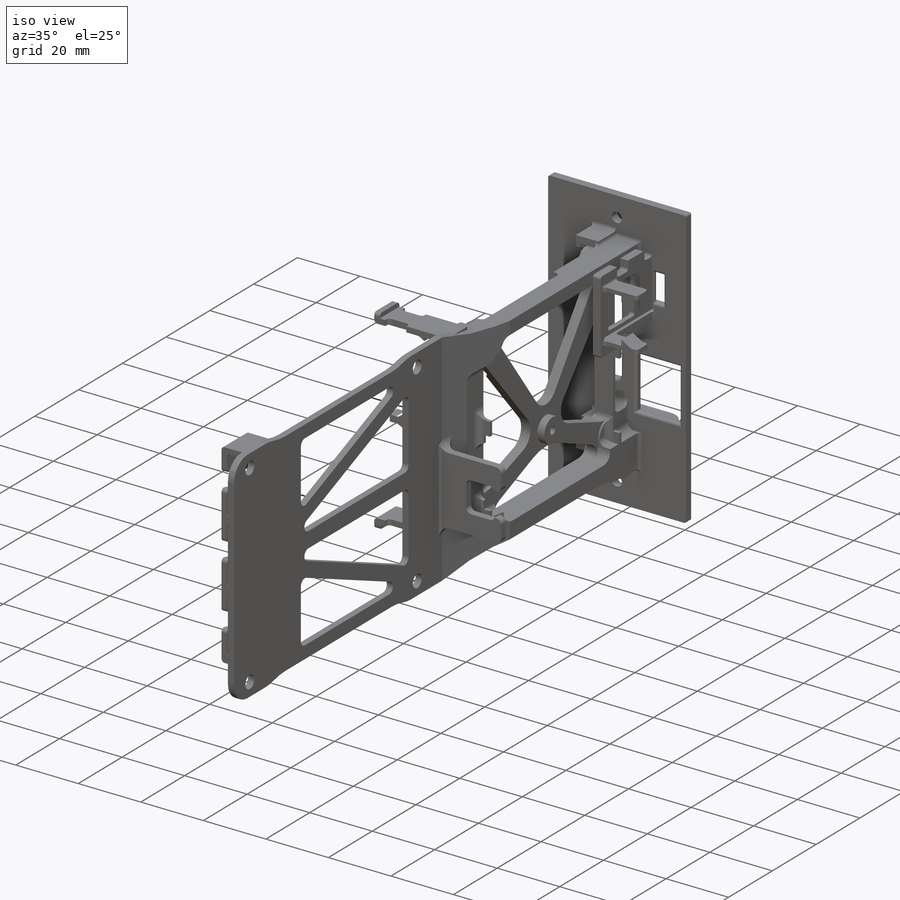
[diagram: iso view]
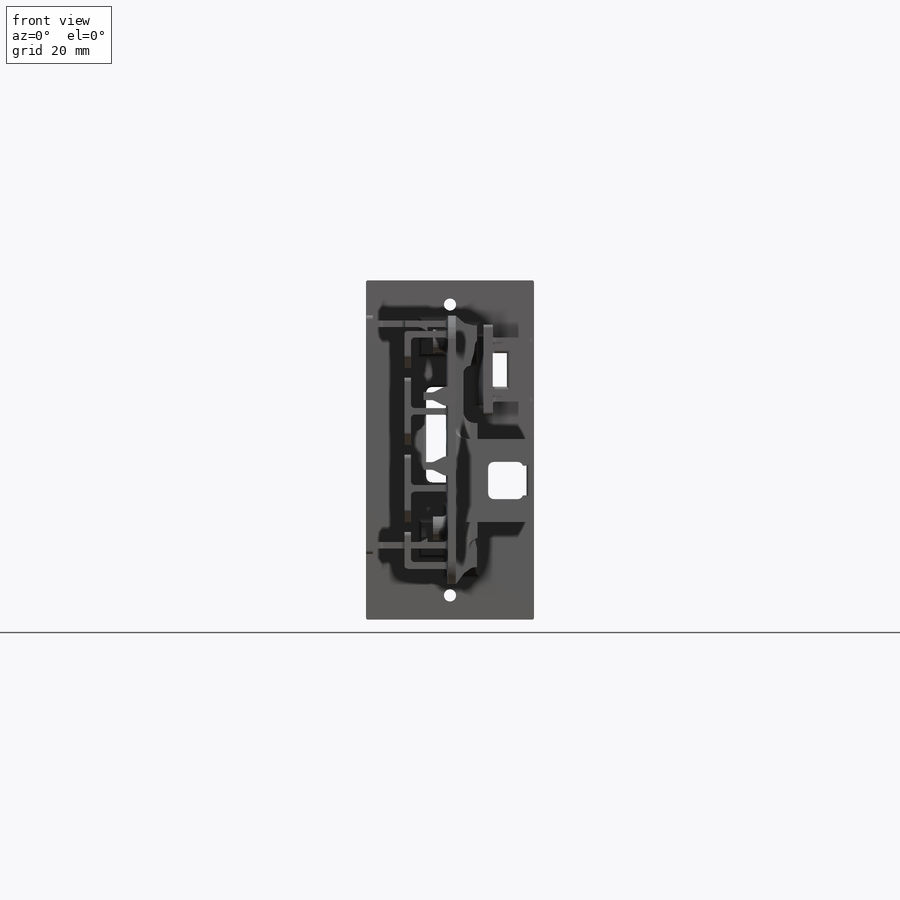
[diagram: front view]
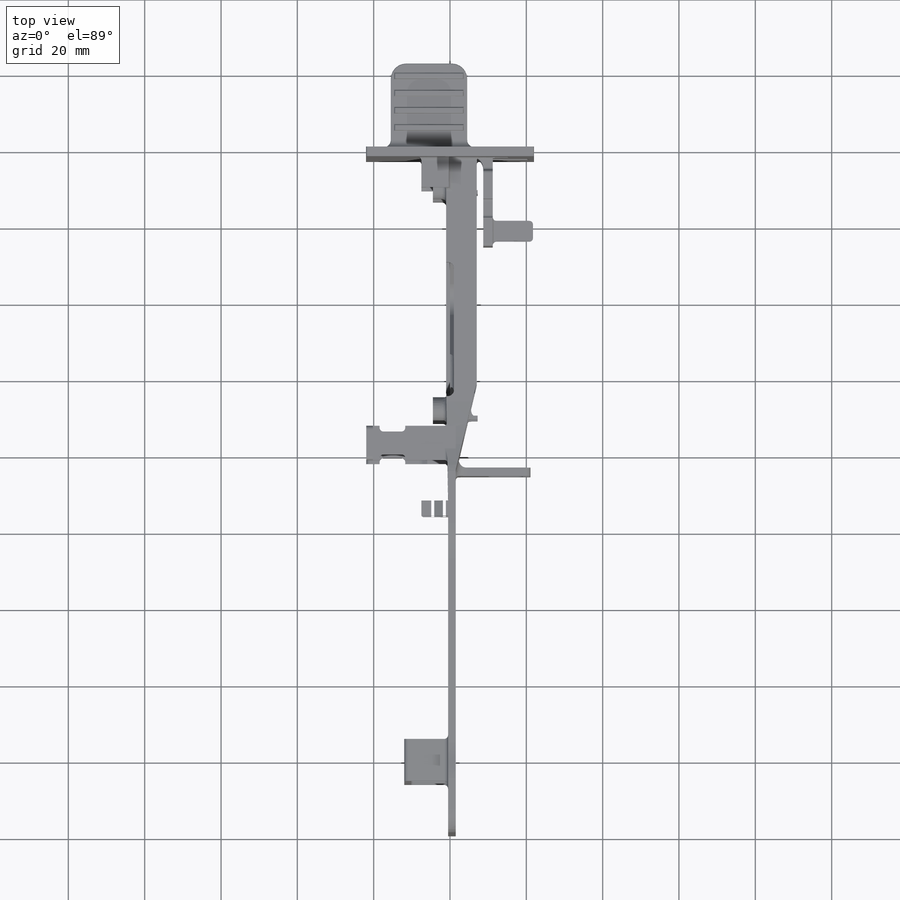
[diagram: top view]
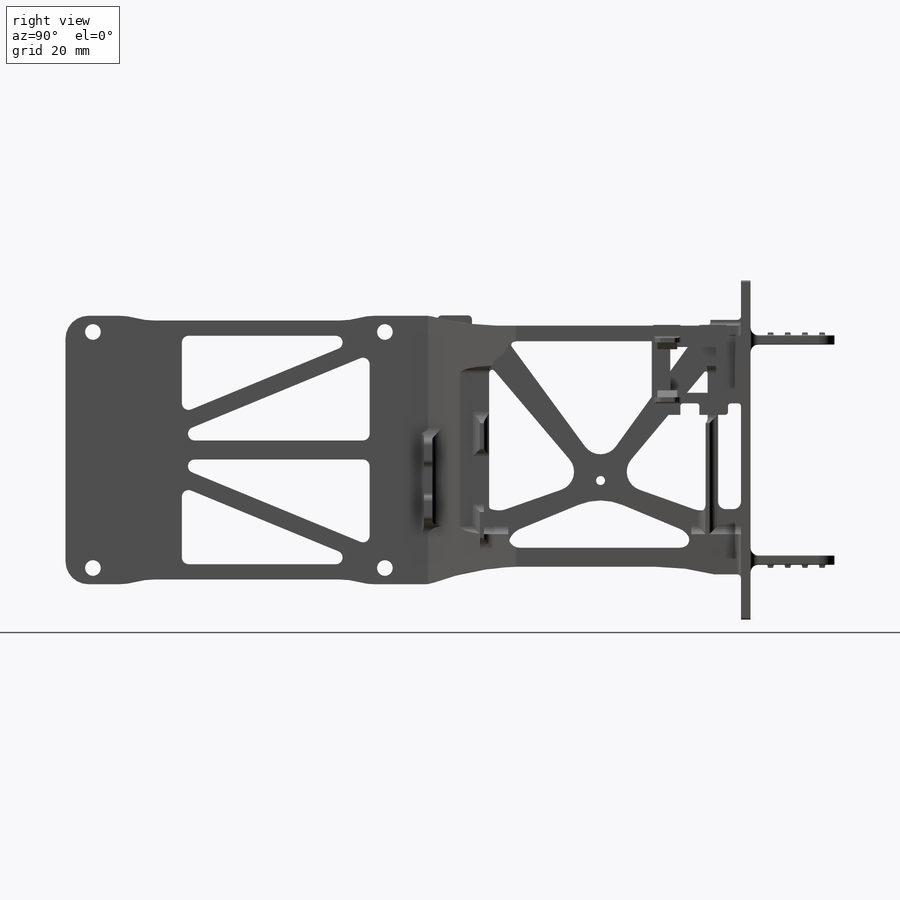
[diagram: right view]
SOLIDWORKS PART (.sldprt)
format: sldprt  version: not decoded by parser v0  size: 3,109,376 bytes
history: native  units: mm
features: fillet x37, sketch x29, extrude x24, plane x21, cut_extrude x11, surface_op x10, boolean_combine x9, mirror x9, material x1 (+12 scaffold rows collapsed)
feature tree (163):
  scaffold x12  (default folders/planes/origin — collapsed)
  material  "Material <not specified>"
  surface_op  "Surface-Offset2-C2"
  surface_op  "Surface-Offset1-C2-SDCard"
  plane  "Plane2-C2-bottom"
  plane  "Plane3-C2-top"
  plane  "Plane13-C2-aft"
  surface_op  "Surface-Offset5-SSD"
  surface_op  "Surface-Offset6-SSD"
  surface_op  "Surface-Offset12-SSD"
  surface_op  "Surface-Offset3-POE-bottom"
  plane  "Plane8"
  surface_op  "Surface-Offset4-POE"
  surface_op  "Surface-Offset10-POE"
  surface_op  "Surface-Offset8-UART"
  surface_op  "Surface-Offset13-UART"
  sketch  "Front Face"  dims[c1.D1=3.175mm c1.D2=8.0mm c1.D3=76.2mm c1.D4=3.0mm c2.D2=88.9mm c2.D5=44.0mm c2.D6=3.0mm]
  extrude  "Boss-Extrude1"  Depth=2.5mm
  plane  "Plane-FaceRear"
  plane  "Plane7-Semi-mid"  Offset=4.2mm
  sketch  "Sketch2"  dims[c1.D1=8.0mm c1.D2=8.0mm c1.D3=2.5mm c1.D4=6.0mm c1.D5=15.0mm c1.D6=2.0mm c2.D1=2.0mm c2.D3=10.5mm c2.D4=7.0mm c2.D6=2.0mm c2.D5=7.0mm c2.D7=19.0mm]
  extrude  "Boss-Extrude2"  Depth=100mm
  sketch  "Sketch3"  dims[D1=~116.879957mm D2=4.25mm D3=4.25mm D4=2.5mm D5=2.5mm D6=2.5mm]
  extrude  "Boss-Extrude3"  Depth=50mm
  boolean_combine  "Combine1"
  sketch  "Sketch4"  dims[c1.D1=5.0mm c1.D2=2.0mm c1.D3=5.0mm c2.D2=2.0mm c2.D4=7.0mm c2.D5=2.0mm]
  cut_extrude  "Cut-Extrude1"  Depth=0.75mm
  sketch  "Sketch5"  dims[c1.D1=~34.349677mm c2.D1=3.0deg c2.D2=~41.045922mm c3.D2=~4.272337deg c3.D3=~27.395145mm c4.D3=3.0deg c4.D2=~28.517758mm c5.D2=4.0deg c5.D3=~36.372461mm c6.D3=4.0deg c6.D4=~30.282511mm c7.D4=3.0deg c7.D5=~29.939464mm c8.D5=3.0deg c8.D1=6.5mm c8.D6=4.0mm]
  extrude  "Boss-Extrude4"  Depth=3mm
  fillet  "Fillet39"  Radius=3mm
  fillet  "Fillet1"  Radius=5mm
  sketch  "Sketch7"  dims[D1=1.75mm D2=1.5mm]
  cut_extrude  "Cut-Extrude2"  [1 undecoded]
  sketch  "Sketch6"  dims[D1=7.75mm D2=2.35mm D3=~2.30547mm]
  extrude  "Boss-Extrude5"  [1 undecoded]
  extrude  "Combine2"  [1 undecoded]
  fillet  "Fillet4"  Radius=60mm
  fillet  "Fillet5"  Radius=6mm
  fillet  "Fillet37"  Radius=2mm
  sketch  "Sketch8"  dims[D1=2.5mm D2=2.5mm D3=0.4mm]
  extrude  "Boss-Extrude6-POE-rail"  Depth=2mm
  extrude  "Combine3"  [1 undecoded]
  sketch  "Sketch29"  dims[D1=2.5mm D2=~1.362227mm]
  cut_extrude  "Cut-Extrude8-POE-extra-aft-cut"  [1 undecoded]
  cut_extrude  "Cut-Extrude3"  [1 undecoded]
  sketch  "Sketch6<3>"
  fillet  "Fillet6"  Radius=15mm
  plane  "Plane9-C2-mid"
  plane  "Plane10-C2-mid"  Offset=80mm
  boolean_combine  "Move Face6"
  boolean_combine  "Move Face7"
  boolean_combine  "Move Face8"
  extrude  "Combine5"  [1 undecoded]
  sketch  "Sketch10"  dims[D1=2.25mm D2=6.15mm]
  extrude  "Boss-Extrude7-C2-Mount-boss"  [1 undecoded]
  cut_extrude  "Cut-Extrude4-C2-boss-hole"  [1 undecoded]
  sketch  "Sketch10<3>"  dims[D1=7.5mm]
  mirror  "Mirror3"
  mirror  "Mirror4"
  fillet  "Fillet24"  Radius=1.05mm
  sketch  "Sketch11"  dims[c1.D1=7.5mm c1.D2=25.0mm c1.D3=2.5mm c1.D4=2.0mm c2.D3=17.0mm c2.D5=3.0mm]
  cut_extrude  "Cut-Extrude5-SDCard-slot"  [1 undecoded]
  fillet  "Fillet14-C2-SD-Cutout"  Radius=1.5mm
  cut_extrude  "Cut-Extrude6"  [1 undecoded]
  sketch  "Sketch11<3>"  dims[D1=15.0mm]
  sketch  "Sketch12"  dims[c1.D1=~6.565555mm c2.D1=90.0deg c3.D1=0.05mm c3.D2=0.05mm c3.D3=3.5mm c3.D4=1.0mm c3.D5=0.05mm]
  extrude  "Boss-Extrude8-Front Notch Base"  Depth=0.75mm
  plane  "Plane11"
  extrude  "Boss-Extrude9-Front Notch"  [1 undecoded]
  sketch  "Sketch12<2>"  dims[D1=1.25mm D19=0.75mm]
  boolean_combine  "Move Face1"
  boolean_combine  "Move Face5"
  extrude  "Combine4"  [1 undecoded]
  fillet  "Fillet7"  Radius=2.5mm
  plane  "Plane12-POE-Cable-holder"
  sketch  "Sketch15"  dims[D1=9.1mm D2=8.5mm D3=2.0mm D4=6.0mm D5=1.0mm D6=9.75mm]
  extrude  "Boss-Extrude10-POE-Cable-holder"  Depth=2.2mm
  fillet  "Fillet10"  Radius=1.5mm
  fillet  "Fillet12"  Radius=3mm
  sketch  "Sketch16"  dims[c1.D1=1.15mm c1.D2=~1.592078mm c2.D2=60.0deg c2.D3=1.0mm c2.D4=0.15mm c2.D5=16.0mm c2.D6=0.45mm c2.D1=1.75mm c2.D7=1.75mm]
  extrude  "Boss-Extrude11-C2-tab"  Depth=9mm
  fillet  "Fillet13"  Radius=2mm
  mirror  "Mirror7"
  sketch  "Sketch18"  dims[D1=2.0mm D2=2.0mm D3=2.0mm D4=5.0mm D5=7.5mm D6=3.0mm D7=12.0mm D8=12.0mm]
  extrude  "Boss-Extrude12-UART Bracket"  Depth=1mm
  boolean_combine  "Move Face2"
  boolean_combine  "Move Face3"
  plane  "Plane15"
  sketch  "Sketch19"  dims[c1.D1=1.75mm c1.D2=15.0mm c1.D3=4.0mm c2.D2=10.0mm]
  extrude  "Boss-Extrude13-Cable-guides"  Depth=11mm
  sketch  "Sketch20"  dims[c1.D1=4.75mm c1.D2=13.0mm c2.D2=75.0deg]
  cut_extrude  "Cut-Extrude8-Cable-cut"  [1 undecoded]
  fillet  "Fillet16"  Radius=1mm
  plane  "Plane16-SSD-bracket-mid"  Offset=5mm
  boolean_combine  "Move Face4"
  cut_extrude  "Cut-Extrude11-UART-bottom-hole"  [1 undecoded]
  sketch  "Sketch18<3>"
  fillet  "Fillet19"  Radius=1.5mm
  fillet  "Fillet15-UARTbracket"  Radius=0.75mm
  fillet  "Fillet21"  Radius=0.75mm
  fillet  "Fillet22"  Radius=1mm
  plane  "Plane17"
  sketch  "Sketch25"  dims[c1.D1=~1.615586mm c2.D1=60.0deg c2.D2=1.8mm c2.D3=1.2mm c2.D4=8.0mm c2.D5=5.55mm c3.D4=5.0mm c3.D6=0.0mm]
  extrude  "Boss-Extrude14-UART-Tab"  Depth=5.2mm
  fillet  "Fillet26"  Radius=1mm
  fillet  "Fillet56"  Radius=0.5mm
  plane  "Plane18"
  mirror  "Mirror11"
  sketch  "Sketch26"  dims[D1=1.5mm D2=3.5mm]
  cut_extrude  "Cut-Extrude10-C2-top-tabs-Cut"  [1 undecoded]
  plane  "Plane19"
  mirror  "Mirror12"
  fillet  "Fillet27"  Radius=1mm
  fillet  "Fillet51"  Radius=0.78mm
  plane  "Plane20"
  sketch  "Sketch28"  dims[c1.D1=2.5mm c1.D2=4.5mm c1.D3=6.0mm c1.D4=1.0mm c1.D5=4.0mm c1.D6=~3.977377mm c2.D6=75.0deg c2.D7=~6.260929mm c3.D7=120.0deg c3.D6=~14.210971mm c4.D6=30.0deg c4.D7=5.0mm c4.D8=4.0mm c4.D9=5.0mm c4.D10=5.0mm]
  cut_extrude  "Cut-Extrude7-Cutouts-SSD-Plate"  [1 undecoded]
  fillet  "Fillet32"  Radius=1.75mm
  fillet  "Fillet33"  Radius=20mm
  fillet  "Fillet34"  Radius=15mm
  mirror  "Mirror13-Cutouts-SSD"
  plane  "Plane21"
  plane  "Plane25-aft-tabs-mid"
  sketch  "Sketch27"  dims[D1=2.0mm D2=4.0mm D3=0.25mm]
  extrude  "Boss-Extrude15-C2-aft-tabs"  Depth=10mm
  sketch  "Sketch32"  dims[D1=2.0mm D2=5.0mm D3=2.5mm D4=1.0mm]
  extrude  "Boss-Extrude19-C2-aft-tabs-profile"  Depth=10mm
  extrude  "Combine6"  [1 undecoded]
  mirror  "Mirror19"
  extrude  "Combine7"  [1 undecoded]
  fillet  "Fillet35"  Radius=3mm
  fillet  "Fillet38"  Radius=2mm
  fillet  "Fillet41"  Radius=0.5mm
  sketch  "Sketch30"  dims[D1=2.5mm D2=20.0mm D3=4.5mm D4=5.0mm]
  extrude  "Boss-Extrude17-Tabs-front-face"  Depth=22mm
  fillet  "Fillet43"  Radius=4mm
  fillet  "Fillet44"  Radius=2mm
  plane  "Plane23"
  sketch  "Sketch31"  dims[D1=3.0mm D2=1.5mm D3=0.75mm D4=2.0mm]
  plane  "Plane24"
  extrude  "Boss-Extrude18"  Depth=18mm
  mirror  "Mirror15"
  fillet  "Fillet45"  Radius=0.25mm
  mirror  "Mirror14"
  fillet  "Fillet46"  Radius=0.5mm
  fillet  "Fillet47"  Radius=2mm
  fillet  "Fillet48"  Radius=0.75mm
  fillet  "Fillet49"  Radius=2mm
  fillet  "Fillet50"  Radius=0.8mm
  fillet  "Fillet52"  Radius=1.75mm
  fillet  "Fillet55"  Radius=0.5mm
  plane  "Plane25"  Offset=0mm
decode coverage: 80 of 129 modeling features carry decoded parameters
note: ~ marks probable driven/reference dimensions
note: 19 parameter values undecoded
summary: no parameter record found for 19 features
note: suppression state not decoded; provenance and decode notes live in map.json
